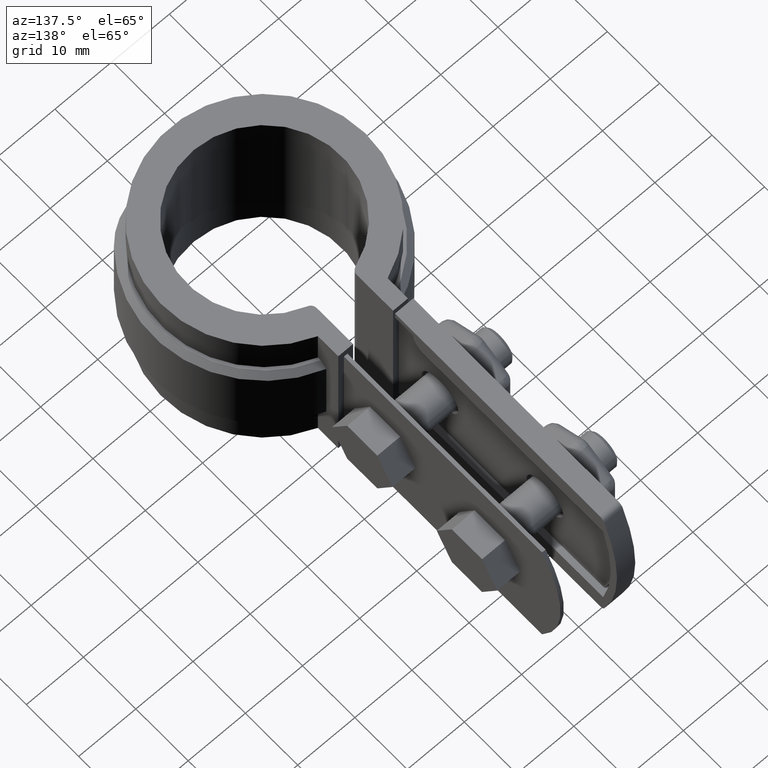
[diagram: clean part render]
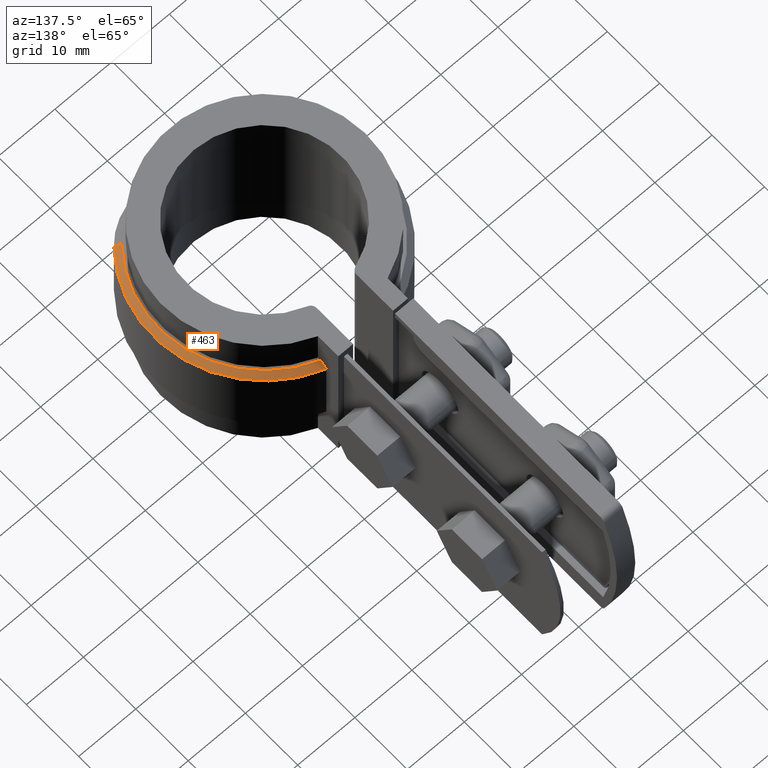
[diagram: same view with one face highlighted and labeled with its STEP entity id]
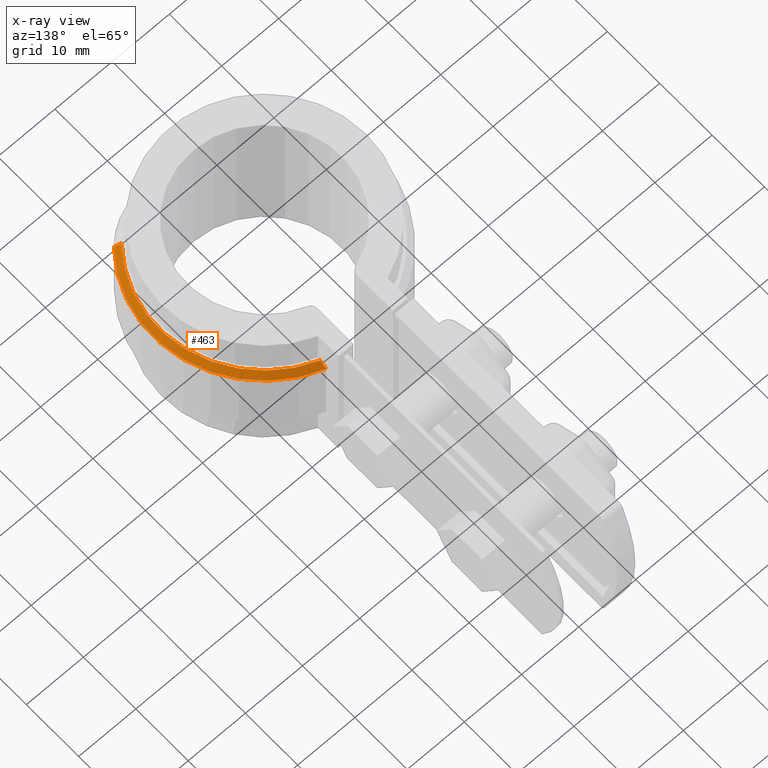
[diagram: x-ray of the same camera — body ghosted, the highlighted face saturated]
A machine part, auxiliary view. The second image highlights one B-rep face of the part: STEP entity #463.
The next image is the same camera in x-ray: the body ghosted, the highlighted face saturated — about 0% of this face is hidden behind the body in this view.
In plain terms, the highlighted conical surface has half-angle 45 deg.
Its self-contained STEP definition (entity closure, byte-faithful):
#463 = ADVANCED_FACE( '', ( #916 ), #917, .T. );
#916 = FACE_OUTER_BOUND( '', #1980, .T. );
#917 = CONICAL_SURFACE( '', #1981, 19.4350000000000, 0.785398163397449 );
#1980 = EDGE_LOOP( '', ( #4323, #4324, #4325, #4326 ) );
#1981 = AXIS2_PLACEMENT_3D( '', #4327, #4328, #4329 );
#4323 = ORIENTED_EDGE( '', *, *, #6534, .F. );
#4324 = ORIENTED_EDGE( '', *, *, #6508, .F. );
#4325 = ORIENTED_EDGE( '', *, *, #6537, .F. );
#4326 = ORIENTED_EDGE( '', *, *, #6514, .F. );
#4327 = CARTESIAN_POINT( '', ( -8.67361737988404E-016, 0.000000000000000, -6.00000000000000 ) );
#4328 = DIRECTION( '', ( 0.000000000000000, 0.000000000000000, -1.00000000000000 ) );
#4329 = DIRECTION( '', ( -1.00000000000000, 0.000000000000000, 0.000000000000000 ) );
#6508 = EDGE_CURVE( '', #7633, #7635, #7636, .T. );
#6514 = EDGE_CURVE( '', #7643, #7646, #7647, .F. );
#6534 = EDGE_CURVE( '', #7635, #7643, #7676, .T. );
#6537 = EDGE_CURVE( '', #7646, #7633, #7679, .T. );
#7633 = VERTEX_POINT( '', #10632 );
#7635 = VERTEX_POINT( '', #10634 );
#7636 = CIRCLE( '', #10635, 18.4350000000000 );
#7643 = VERTEX_POINT( '', #10644 );
#7646 = VERTEX_POINT( '', #10648 );
#7647 = CIRCLE( '', #10649, 19.4350000000000 );
#7676 = B_SPLINE_CURVE_WITH_KNOTS( '', 3, ( #10686, #10687, #10688, #10689 ), .UNSPECIFIED., .F., .F., ( 4, 4 ), ( 0.000000000000000, 0.00145461426675658 ), .UNSPECIFIED. );
#7679 = LINE( '', #10696, #10697 );
#10632 = CARTESIAN_POINT( '', ( 13.8093023861862, -12.2127962648557, -5.00000000000000 ) );
#10634 = CARTESIAN_POINT( '', ( 6.10000000000003, 17.3965291078422, -5.00000000000000 ) );
#10635 = AXIS2_PLACEMENT_3D( '', #12524, #12525, #12526 );
#10644 = CARTESIAN_POINT( '', ( 6.10000000000003, 18.4528920497574, -5.99999999999999 ) );
#10648 = CARTESIAN_POINT( '', ( 14.5583830689193, -12.8752750424448, -5.99999999999999 ) );
#10649 = AXIS2_PLACEMENT_3D( '', #12536, #12537, #12538 );
#10686 = CARTESIAN_POINT( '', ( 6.10000000000003, 17.3965291078422, -5.00000000000000 ) );
#10687 = CARTESIAN_POINT( '', ( 6.10000000000003, 17.7491735695479, -5.33277947614771 ) );
#10688 = CARTESIAN_POINT( '', ( 6.10000000000003, 18.1012669802898, -5.66614358379865 ) );
#10689 = CARTESIAN_POINT( '', ( 6.10000000000003, 18.4528920497574, -6.00000000000000 ) );
#10696 = CARTESIAN_POINT( '', ( 14.5583830689193, -12.8752750424448, -6.00000000000000 ) );
#10697 = VECTOR( '', #12581, 1000.00000000000 );
#12524 = CARTESIAN_POINT( '', ( -8.67361737988404E-016, 0.000000000000000, -5.00000000000000 ) );
#12525 = DIRECTION( '', ( 0.000000000000000, 0.000000000000000, 1.00000000000000 ) );
#12526 = DIRECTION( '', ( 1.00000000000000, 0.000000000000000, 0.000000000000000 ) );
#12536 = CARTESIAN_POINT( '', ( -8.67361737988404E-016, 0.000000000000000, -6.00000000000000 ) );
#12537 = DIRECTION( '', ( 0.000000000000000, 0.000000000000000, 1.00000000000000 ) );
#12538 = DIRECTION( '', ( 1.00000000000000, 0.000000000000000, 0.000000000000000 ) );
#12581 = DIRECTION( '', ( -0.529680030416481, 0.468443236025451, 0.707106781186547 ) );